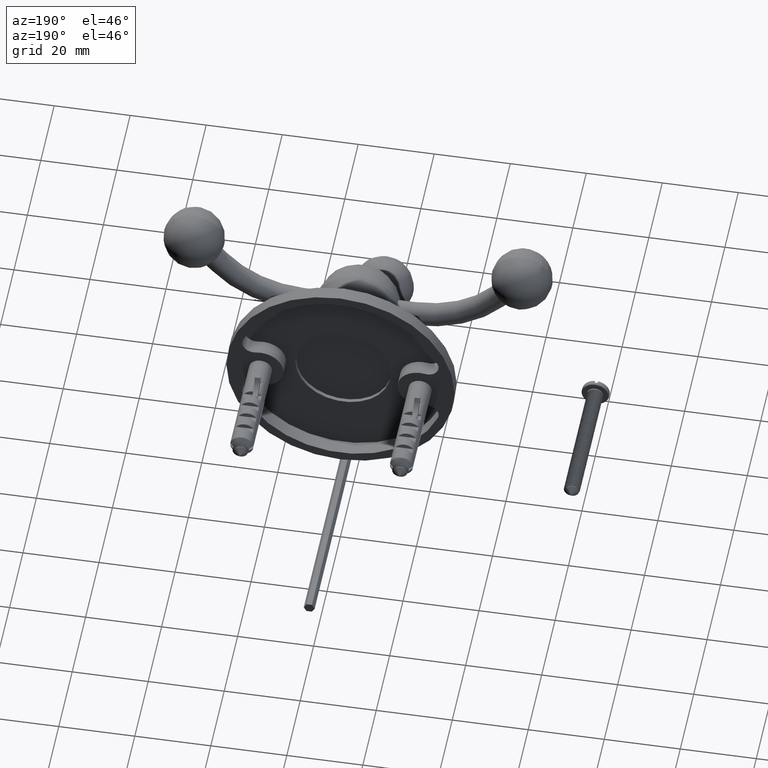
[diagram: clean part render]
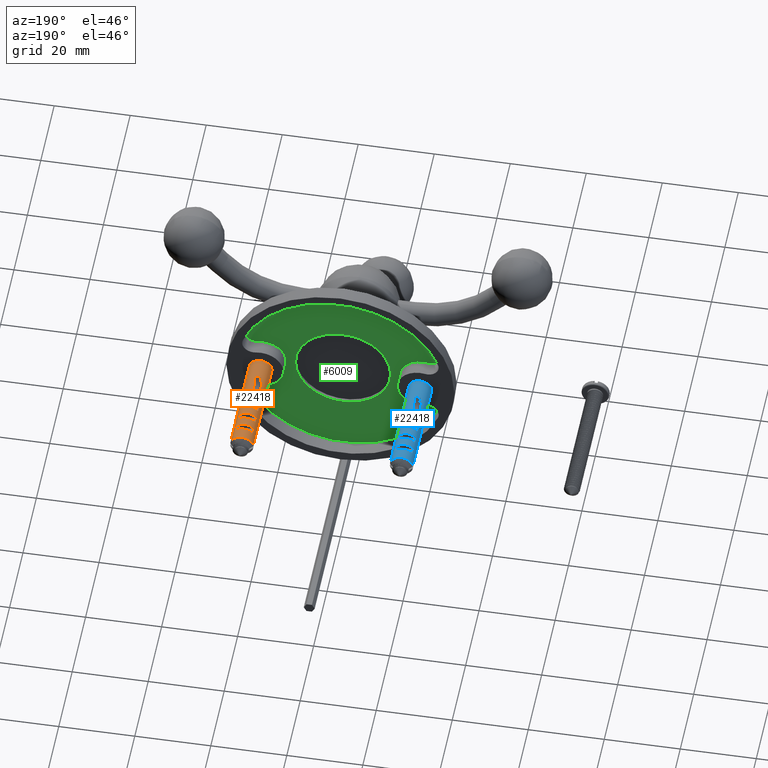
[diagram: same view with three faces highlighted in distinct colors, each labeled with its STEP entity id]
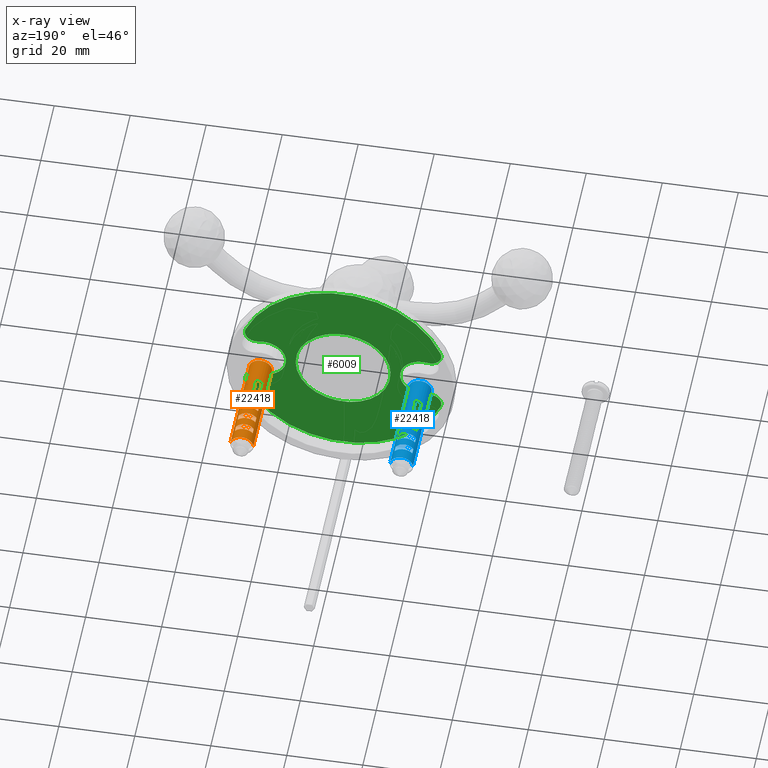
[diagram: x-ray of the same camera — body ghosted, the three highlighted faces saturated]
A machine part, auxiliary view with three faces highlighted in distinct colors.
The next image is the same camera in x-ray (body ghosted, the three faces saturated) — at least one of them is partly hidden behind the body in this view.
Their STEP definitions:

[orange] entity #22418 — the highlighted cylindrical surface (edge-blend (fillet) strip) has radius 3.04 mm, axis along (0, -1, 0).
#19980=CARTESIAN_POINT('',(3.019784760542E0,2.806E1,3.5E-1));
#20034=CARTESIAN_POINT('',(-3.019784760542E0,2.806E1,3.5E-1));
#20036=CARTESIAN_POINT('',(0.E0,2.806E1,0.E0));
#20037=DIRECTION('',(0.E0,-1.E0,0.E0));
#20038=DIRECTION('',(9.933502501782E-1,0.E0,1.151315789474E-1));
#20039=AXIS2_PLACEMENT_3D('',#20036,#20037,#20038);
#20154=DIRECTION('',(0.E0,1.E0,0.E0));
#20155=VECTOR('',#20154,1.118843533613E1);
#20156=CARTESIAN_POINT('',(-3.04E0,0.E0,0.E0));
#20157=LINE('',#20156,#20155);
#20163=DIRECTION('',(0.E0,1.E0,0.E0));
#20164=VECTOR('',#20163,1.118843533613E1);
#20165=CARTESIAN_POINT('',(3.04E0,0.E0,0.E0));
#20166=LINE('',#20165,#20164);
#20345=DIRECTION('',(0.E0,-1.E0,0.E0));
#20346=VECTOR('',#20345,1.687156466387E1);
#20347=CARTESIAN_POINT('',(3.019784760542E0,2.806E1,3.5E-1));
#20348=LINE('',#20347,#20346);
#20349=CARTESIAN_POINT('',(0.E0,1.118843533613E1,0.E0));
#20350=DIRECTION('',(0.E0,-1.E0,0.E0));
#20351=DIRECTION('',(1.E0,0.E0,0.E0));
#20352=AXIS2_PLACEMENT_3D('',#20349,#20350,#20351);
#20354=CARTESIAN_POINT('',(0.E0,0.E0,0.E0));
#20355=DIRECTION('',(0.E0,-1.E0,0.E0));
#20356=DIRECTION('',(1.E0,0.E0,0.E0));
#20357=AXIS2_PLACEMENT_3D('',#20354,#20355,#20356);
#20359=CARTESIAN_POINT('',(0.E0,1.118843533613E1,0.E0));
#20360=DIRECTION('',(0.E0,-1.E0,0.E0));
#20361=DIRECTION('',(-9.933502501782E-1,0.E0,1.151315789474E-1));
#20362=AXIS2_PLACEMENT_3D('',#20359,#20360,#20361);
#20364=DIRECTION('',(0.E0,-1.E0,0.E0));
#20365=VECTOR('',#20364,1.687156466387E1);
#20366=CARTESIAN_POINT('',(-3.019784760542E0,2.806E1,3.5E-1));
#20367=LINE('',#20366,#20365);
#20368=DIRECTION('',(0.E0,-1.E0,0.E0));
#20369=VECTOR('',#20368,1.5E0);
#20370=CARTESIAN_POINT('',(2.332187814049E0,1.7E1,1.95E0));
#20371=LINE('',#20370,#20369);
#20372=CARTESIAN_POINT('',(0.E0,1.7E1,0.E0));
#20373=DIRECTION('',(0.E0,-1.E0,0.E0));
#20374=DIRECTION('',(7.671670440952E-1,0.E0,6.414473684211E-1));
#20375=AXIS2_PLACEMENT_3D('',#20372,#20373,#20374);
#20377=DIRECTION('',(0.E0,-1.E0,0.E0));
#20378=VECTOR('',#20377,1.5E0);
#20379=CARTESIAN_POINT('',(-2.332187814049E0,1.7E1,1.95E0));
#20380=LINE('',#20379,#20378);
#20381=CARTESIAN_POINT('',(2.332187814049E0,1.55E1,1.95E0));
#20382=CARTESIAN_POINT('',(2.137838829545E0,1.545901452646E1,2.182440170940E0));
#20383=CARTESIAN_POINT('',(1.749140860537E0,1.539978347189E1,2.518356173912E0));
#20384=CARTESIAN_POINT('',(9.717449225205E-1,1.532642157547E1,
2.934412163319E0));
#20385=CARTESIAN_POINT('',(0.E0,1.529539160140E1,3.110391891120E0));
#20386=CARTESIAN_POINT('',(-9.717449225205E-1,1.532642157547E1,
2.934412163319E0));
#20387=CARTESIAN_POINT('',(-1.749140860537E0,1.539978347189E1,
2.518356173912E0));
#20388=CARTESIAN_POINT('',(-2.137838829545E0,1.545901452646E1,
2.182440170940E0));
#20389=CARTESIAN_POINT('',(-2.332187814049E0,1.55E1,1.95E0));
#20391=DIRECTION('',(0.E0,-1.E0,0.E0));
#20392=VECTOR('',#20391,1.5E0);
#20393=CARTESIAN_POINT('',(2.332187814049E0,2.1E1,1.95E0));
#20394=LINE('',#20393,#20392);
#20395=CARTESIAN_POINT('',(0.E0,2.1E1,0.E0));
#20396=DIRECTION('',(0.E0,-1.E0,0.E0));
#20397=DIRECTION('',(7.671670440952E-1,0.E0,6.414473684211E-1));
#20398=AXIS2_PLACEMENT_3D('',#20395,#20396,#20397);
#20400=DIRECTION('',(0.E0,-1.E0,0.E0));
#20401=VECTOR('',#20400,1.5E0);
#20402=CARTESIAN_POINT('',(-2.332187814049E0,2.1E1,1.95E0));
#20403=LINE('',#20402,#20401);
#20404=CARTESIAN_POINT('',(2.332187814049E0,1.95E1,1.95E0));
#20405=CARTESIAN_POINT('',(2.137838829545E0,1.945901452646E1,2.182440170940E0));
#20406=CARTESIAN_POINT('',(1.749140860537E0,1.939978347189E1,2.518356173912E0));
#20407=CARTESIAN_POINT('',(9.717449225205E-1,1.932642157547E1,
2.934412163319E0));
#20408=CARTESIAN_POINT('',(0.E0,1.929539160140E1,3.110391891120E0));
#20409=CARTESIAN_POINT('',(-9.717449225205E-1,1.932642157547E1,
2.934412163319E0));
#20410=CARTESIAN_POINT('',(-1.749140860537E0,1.939978347189E1,
2.518356173912E0));
#20411=CARTESIAN_POINT('',(-2.137838829545E0,1.945901452646E1,
2.182440170940E0));
#20412=CARTESIAN_POINT('',(-2.332187814049E0,1.95E1,1.95E0));
#20414=CARTESIAN_POINT('',(0.E0,2.5E1,0.E0));
#20415=DIRECTION('',(0.E0,-1.E0,0.E0));
#20416=DIRECTION('',(7.671670440952E-1,0.E0,6.414473684211E-1));
#20417=AXIS2_PLACEMENT_3D('',#20414,#20415,#20416);
#20419=DIRECTION('',(0.E0,-1.E0,0.E0));
#20420=VECTOR('',#20419,1.5E0);
#20421=CARTESIAN_POINT('',(-2.332187814049E0,2.5E1,1.95E0));
#20422=LINE('',#20421,#20420);
#20423=CARTESIAN_POINT('',(2.332187814049E0,2.35E1,1.95E0));
#20424=CARTESIAN_POINT('',(2.137838829545E0,2.345901452646E1,2.182440170940E0));
#20425=CARTESIAN_POINT('',(1.749140860537E0,2.339978347189E1,2.518356173912E0));
#20426=CARTESIAN_POINT('',(9.717449225205E-1,2.332642157547E1,
2.934412163319E0));
#20427=CARTESIAN_POINT('',(0.E0,2.329539160140E1,3.110391891120E0));
#20428=CARTESIAN_POINT('',(-9.717449225205E-1,2.332642157547E1,
2.934412163319E0));
#20429=CARTESIAN_POINT('',(-1.749140860537E0,2.339978347189E1,
2.518356173912E0));
#20430=CARTESIAN_POINT('',(-2.137838829545E0,2.345901452646E1,
2.182440170940E0));
#20431=CARTESIAN_POINT('',(-2.332187814049E0,2.35E1,1.95E0));
#20433=DIRECTION('',(0.E0,-1.E0,0.E0));
#20434=VECTOR('',#20433,1.5E0);
#20435=CARTESIAN_POINT('',(2.332187814049E0,2.5E1,1.95E0));
#20436=LINE('',#20435,#20434);
#20437=CARTESIAN_POINT('',(-1.258592024341E0,1.309607831380E1,
2.767227200120E0));
#20438=CARTESIAN_POINT('',(-1.242961526865E0,1.309406228677E1,
2.774336287083E0));
#20439=CARTESIAN_POINT('',(-1.212783386474E0,1.308954227398E1,
2.787742308904E0));
#20440=CARTESIAN_POINT('',(-1.170905516957E0,1.308178244920E1,
2.805568455516E0));
#20441=CARTESIAN_POINT('',(-1.132153720761E0,1.307336197082E1,
2.821411494835E0));
#20442=CARTESIAN_POINT('',(-1.096468113992E0,1.306455278275E1,
2.835455057921E0));
#20443=CARTESIAN_POINT('',(-1.063652962309E0,1.305554171573E1,
2.847914610832E0));
#20444=CARTESIAN_POINT('',(-1.033478514405E0,1.304645295579E1,
2.858992346653E0));
#20445=CARTESIAN_POINT('',(-1.005699006694E0,1.303736309992E1,
2.868873524394E0));
#20446=CARTESIAN_POINT('',(-9.800637849466E-1,1.302831021592E1,
2.877724907381E0));
#20447=CARTESIAN_POINT('',(-9.563249653145E-1,1.301930133033E1,
2.885695054358E0));
#20448=CARTESIAN_POINT('',(-9.342225686431E-1,1.301030909736E1,
2.892921748062E0));
#20449=CARTESIAN_POINT('',(-9.135030787650E-1,1.300127769158E1,
2.899527519767E0));
#20450=CARTESIAN_POINT('',(-8.940326356771E-1,1.299217541141E1,
2.905586891630E0));
#20451=CARTESIAN_POINT('',(-8.758143058269E-1,1.298302106541E1,
2.911127195002E0));
#20452=CARTESIAN_POINT('',(-8.588781267614E-1,1.297384638697E1,
2.916166037886E0));
#20453=CARTESIAN_POINT('',(-8.432416660016E-1,1.296467805805E1,
2.920723271987E0));
#20454=CARTESIAN_POINT('',(-8.289164623302E-1,1.295554091681E1,
2.924818742352E0));
#20455=CARTESIAN_POINT('',(-8.158987875627E-1,1.294645274184E1,
2.928474690710E0));
#20456=CARTESIAN_POINT('',(-8.041714048951E-1,1.293742019911E1,
2.931714914824E0));
#20457=CARTESIAN_POINT('',(-7.937239998644E-1,1.292846175676E1,
2.934558974300E0));
#20458=CARTESIAN_POINT('',(-7.845115748405E-1,1.291954323727E1,
2.937034032320E0));
#20459=CARTESIAN_POINT('',(-7.764536988366E-1,1.291065927230E1,
2.939172753830E0));
#20460=CARTESIAN_POINT('',(-7.717266903097E-1,1.290442479250E1,
2.940416733148E0));
#20461=CARTESIAN_POINT('',(-7.695551796420E-1,1.290131583494E1,
2.940984924424E0));
#20463=CARTESIAN_POINT('',(-1.442090070688E0,1.306154855976E1,
2.676186687201E0));
#20464=CARTESIAN_POINT('',(-1.436071653813E0,1.306549271813E1,
2.679429872260E0));
#20465=CARTESIAN_POINT('',(-1.423964945264E0,1.307254012935E1,
2.685899038803E0));
#20466=CARTESIAN_POINT('',(-1.406756420029E0,1.308050705517E1,
2.694953284410E0));
#20467=CARTESIAN_POINT('',(-1.387640408810E0,1.308739268937E1,
2.704850778162E0));
#20468=CARTESIAN_POINT('',(-1.368018635734E0,1.309247902853E1,
2.714826237365E0));
#20469=CARTESIAN_POINT('',(-1.349059348314E0,1.309582348314E1,
2.724294919714E0));
#20470=CARTESIAN_POINT('',(-1.330743460229E0,1.309782465315E1,
2.733286472400E0));
#20471=CARTESIAN_POINT('',(-1.313030154747E0,1.309877235584E1,
2.741838546581E0));
#20472=CARTESIAN_POINT('',(-1.295348851308E0,1.309886700564E1,
2.750236552578E0));
#20473=CARTESIAN_POINT('',(-1.277271908532E0,1.309809004468E1,
2.758679373842E0));
#20474=CARTESIAN_POINT('',(-1.264869600965E0,1.309688854276E1,
2.764372260239E0));
#20475=CARTESIAN_POINT('',(-1.258592024341E0,1.309607831380E1,
2.767227200120E0));
#20477=CARTESIAN_POINT('',(0.E0,1.32E1,0.E0));
#20478=DIRECTION('',(0.E0,-1.E0,0.E0));
#20479=DIRECTION('',(-5.633802816901E-1,0.E0,8.261977113275E-1));
#20480=AXIS2_PLACEMENT_3D('',#20477,#20478,#20479);
#20482=CARTESIAN_POINT('',(-1.670329308849E0,1.065507396773E1,2.54E0));
#20483=CARTESIAN_POINT('',(-1.670329308849E0,1.069914792704E1,2.54E0));
#20484=CARTESIAN_POINT('',(-1.680083917811E0,1.078834782849E1,
2.533627423814E0));
#20485=CARTESIAN_POINT('',(-1.727331515602E0,1.092743345836E1,
2.501975298478E0));
#20486=CARTESIAN_POINT('',(-1.806917116382E0,1.106548221901E1,
2.445598622024E0));
#20487=CARTESIAN_POINT('',(-1.909400115731E0,1.119277374916E1,
2.366992284418E0));
#20488=CARTESIAN_POINT('',(-2.031506341843E0,1.131054517933E1,
2.263825334988E0));
#20489=CARTESIAN_POINT('',(-2.172728838839E0,1.141729318740E1,
2.129775149498E0));
#20490=CARTESIAN_POINT('',(-2.277800792740E0,1.147613468412E1,
2.015046537610E0));
#20491=CARTESIAN_POINT('',(-2.332187814049E0,1.15E1,1.95E0));
#20493=DIRECTION('',(0.E0,-1.E0,0.E0));
#20494=VECTOR('',#20493,3.355073967734E0);
#20495=CARTESIAN_POINT('',(-1.670329308849E0,1.065507396773E1,2.54E0));
#20496=LINE('',#20495,#20494);
#20497=CARTESIAN_POINT('',(0.E0,7.3E0,0.E0));
#20498=DIRECTION('',(0.E0,-1.E0,0.E0));
#20499=DIRECTION('',(0.E0,0.E0,1.E0));
#20500=AXIS2_PLACEMENT_3D('',#20497,#20498,#20499);
#20502=DIRECTION('',(0.E0,-1.E0,0.E0));
#20503=VECTOR('',#20502,2.614226191050E0);
#20504=CARTESIAN_POINT('',(0.E0,9.914226191050E0,3.04E0));
#20505=LINE('',#20504,#20503);
#20506=DIRECTION('',(0.E0,-9.999999999587E-1,-9.086910658662E-6));
#20507=VECTOR('',#20506,9.652854982319E-1);
#20508=CARTESIAN_POINT('',(0.E0,1.126973360665E1,3.040008771463E0));
#20509=LINE('',#20508,#20507);
#20510=CARTESIAN_POINT('',(2.332187814049E0,1.15E1,1.95E0));
#20511=CARTESIAN_POINT('',(2.029714365205E0,1.143621259424E1,2.311756354599E0));
#20512=CARTESIAN_POINT('',(1.326417094438E0,1.134482988016E1,2.830013479591E0));
#20513=CARTESIAN_POINT('',(4.754390153436E-1,1.130779244243E1,
3.040063226817E0));
#20514=CARTESIAN_POINT('',(-4.041062377804E-4,1.130780359576E1,
3.039999973141E0));
#20516=CARTESIAN_POINT('',(-7.661821878185E-1,1.313569697756E1,
2.941863911696E0));
#20517=CARTESIAN_POINT('',(-7.689079293111E-1,1.310986290474E1,
2.941154017170E0));
#20518=CARTESIAN_POINT('',(-7.727932550824E-1,1.305805273467E1,
2.940135259275E0));
#20519=CARTESIAN_POINT('',(-7.739299259912E-1,1.297969113617E1,
2.939834680005E0));
#20520=CARTESIAN_POINT('',(-7.715510132887E-1,1.292742092144E1,
2.940462678153E0));
#20521=CARTESIAN_POINT('',(-7.695551796420E-1,1.290131583494E1,
2.940984924424E0));
#20632=CARTESIAN_POINT('',(-7.661821878185E-1,1.313569697756E1,
2.941863911696E0));
#20648=CARTESIAN_POINT('',(-7.661821878185E-1,1.313569697756E1,
2.941863911696E0));
#20649=CARTESIAN_POINT('',(-7.651784531554E-1,1.314519842409E1,
2.942125325239E0));
#20650=CARTESIAN_POINT('',(-7.612930026952E-1,1.316261705403E1,
2.943137679297E0));
#20651=CARTESIAN_POINT('',(-7.498548161187E-1,1.318486140578E1,
2.946079441390E0));
#20652=CARTESIAN_POINT('',(-7.395108721278E-1,1.319545237037E1,
2.948687188474E0));
#20653=CARTESIAN_POINT('',(-7.336974518056E-1,1.320000000003E1,
2.950133400312E0));
#20679=CARTESIAN_POINT('',(-7.336974518056E-1,1.320000000003E1,
2.950133400312E0));
#20681=CARTESIAN_POINT('',(0.E0,1.32E1,0.E0));
#20682=DIRECTION('',(0.E0,1.E0,0.E0));
#20683=DIRECTION('',(-2.413478586494E-1,0.E0,9.704386694301E-1));
#20684=AXIS2_PLACEMENT_3D('',#20681,#20682,#20683);
#20686=CARTESIAN_POINT('',(2.332187814049E0,1.32E1,1.95E0));
#20711=DIRECTION('',(0.E0,-1.E0,0.E0));
#20712=VECTOR('',#20711,1.7E0);
#20713=CARTESIAN_POINT('',(2.332187814049E0,1.32E1,1.95E0));
#20714=LINE('',#20713,#20712);
#20723=DIRECTION('',(0.E0,1.E0,0.E0));
#20724=VECTOR('',#20723,1.7E0);
#20725=CARTESIAN_POINT('',(-2.332187814049E0,1.15E1,1.95E0));
#20726=LINE('',#20725,#20724);
#20913=CARTESIAN_POINT('',(-1.712676148473E0,1.32E1,2.511641177583E0));
#20914=CARTESIAN_POINT('',(-1.681385439710E0,1.319999949343E1,
2.532977161906E0));
#20915=CARTESIAN_POINT('',(-1.622664828460E0,1.319162550705E1,
2.571322581216E0));
#20916=CARTESIAN_POINT('',(-1.546536944487E0,1.316038141232E1,
2.617624286721E0));
#20917=CARTESIAN_POINT('',(-1.485025685883E0,1.311540815642E1,
2.652834450848E0));
#20918=CARTESIAN_POINT('',(-1.454910988394E0,1.308028085986E1,
2.669273553552E0));
#20919=CARTESIAN_POINT('',(-1.442090070688E0,1.306154855976E1,
2.676186687201E0));
#21032=CARTESIAN_POINT('',(-2.E-1,9.924580784170E0,3.033413918343E0));
#21033=CARTESIAN_POINT('',(-1.778180217144E-1,9.922276000313E0,
3.034876427509E0));
#21034=CARTESIAN_POINT('',(-1.334264648030E-1,9.918440504107E0,
3.037314736086E0));
#21035=CARTESIAN_POINT('',(-6.673133489969E-2,9.914991926274E0,
3.039511672422E0));
#21036=CARTESIAN_POINT('',(-2.224978511885E-2,9.914226191050E0,3.04E0));
#21037=CARTESIAN_POINT('',(0.E0,9.914226191050E0,3.04E0));
#21085=CARTESIAN_POINT('',(0.E0,1.030444810846E1,3.04E0));
#21086=CARTESIAN_POINT('',(0.E0,1.027699138774E1,3.04E0));
#21087=CARTESIAN_POINT('',(-2.649331930218E-3,1.022456476112E1,
3.040001494547E0));
#21088=CARTESIAN_POINT('',(-1.342270300489E-2,1.015308404831E1,
3.039980649575E0));
#21089=CARTESIAN_POINT('',(-3.015215574721E-2,1.008965690998E1,
3.039870836977E0));
#21090=CARTESIAN_POINT('',(-5.254081371795E-2,1.003391634392E1,
3.039581778999E0));
#21091=CARTESIAN_POINT('',(-8.154837268344E-2,9.985621725167E0,
3.038962015206E0));
#21092=CARTESIAN_POINT('',(-1.170933481659E-1,9.948055546177E0,
3.037829740922E0));
#21093=CARTESIAN_POINT('',(-1.588995228585E-1,9.925670439106E0,
3.035941130509E0));
#21094=CARTESIAN_POINT('',(-1.861264322373E-1,9.923139272750E0,
3.034328634774E0));
#21095=CARTESIAN_POINT('',(-2.E-1,9.924580784170E0,3.033413918343E0));
#21132=CARTESIAN_POINT('',(-4.041062377794E-4,1.130780359576E1,
3.039999973141E0));
#21159=CARTESIAN_POINT('',(-4.041062377794E-4,1.130780359576E1,
3.039999973141E0));
#21160=CARTESIAN_POINT('',(-3.144743245058E-4,1.130353783217E1,
3.039999985056E0));
#21161=CARTESIAN_POINT('',(-1.649353848039E-4,1.129503319795E1,
3.040001166750E0));
#21162=CARTESIAN_POINT('',(-3.006207808662E-5,1.128229482021E1,
3.039995906873E0));
#21163=CARTESIAN_POINT('',(0.E0,1.127393914568E1,3.040008771463E0));
#21164=CARTESIAN_POINT('',(0.E0,1.126973360665E1,3.040008771463E0));
#21816=CARTESIAN_POINT('',(3.04E0,0.E0,0.E0));
#21817=CARTESIAN_POINT('',(-3.04E0,0.E0,0.E0));
#21818=VERTEX_POINT('',#21816);
#21819=VERTEX_POINT('',#21817);
#21820=VERTEX_POINT('',#19980);
#21821=VERTEX_POINT('',#20034);
#21822=CARTESIAN_POINT('',(3.019784760542E0,1.118843533613E1,3.5E-1));
#21823=VERTEX_POINT('',#21822);
#21824=CARTESIAN_POINT('',(-3.019784760542E0,1.118843533613E1,3.5E-1));
#21825=VERTEX_POINT('',#21824);
#21826=CARTESIAN_POINT('',(3.04E0,1.118843533613E1,0.E0));
#21827=VERTEX_POINT('',#21826);
#21828=CARTESIAN_POINT('',(-3.04E0,1.118843533613E1,0.E0));
#21829=VERTEX_POINT('',#21828);
#21836=CARTESIAN_POINT('',(2.332187814049E0,1.7E1,1.95E0));
#21837=CARTESIAN_POINT('',(2.332187814049E0,1.55E1,1.95E0));
#21838=VERTEX_POINT('',#21836);
#21839=VERTEX_POINT('',#21837);
#21840=CARTESIAN_POINT('',(-2.332187814049E0,1.7E1,1.95E0));
#21841=CARTESIAN_POINT('',(-2.332187814049E0,1.55E1,1.95E0));
#21842=VERTEX_POINT('',#21840);
#21843=VERTEX_POINT('',#21841);
#21844=CARTESIAN_POINT('',(2.332187814049E0,2.1E1,1.95E0));
#21845=CARTESIAN_POINT('',(2.332187814049E0,1.95E1,1.95E0));
#21846=VERTEX_POINT('',#21844);
#21847=VERTEX_POINT('',#21845);
#21848=CARTESIAN_POINT('',(-2.332187814049E0,2.1E1,1.95E0));
#21849=CARTESIAN_POINT('',(-2.332187814049E0,1.95E1,1.95E0));
#21850=VERTEX_POINT('',#21848);
#21851=VERTEX_POINT('',#21849);
#21852=CARTESIAN_POINT('',(2.332187814049E0,2.5E1,1.95E0));
#21853=CARTESIAN_POINT('',(-2.332187814049E0,2.5E1,1.95E0));
#21854=VERTEX_POINT('',#21852);
#21855=VERTEX_POINT('',#21853);
#21856=VERTEX_POINT('',#20423);
#21857=VERTEX_POINT('',#20431);
#21951=CARTESIAN_POINT('',(0.E0,7.3E0,3.04E0));
#21953=VERTEX_POINT('',#21951);
#21954=CARTESIAN_POINT('',(-1.670329308849E0,7.3E0,2.54E0));
#21955=VERTEX_POINT('',#21954);
#21958=CARTESIAN_POINT('',(-1.670329308849E0,1.065507396773E1,2.54E0));
#21959=VERTEX_POINT('',#21958);
#21964=VERTEX_POINT('',#20491);
#21965=CARTESIAN_POINT('',(2.332187814049E0,1.15E1,1.95E0));
#21966=VERTEX_POINT('',#21965);
#21967=VERTEX_POINT('',#21132);
#21969=VERTEX_POINT('',#21032);
#21970=VERTEX_POINT('',#21037);
#21971=CARTESIAN_POINT('',(0.E0,1.126973360665E1,3.040008771463E0));
#21972=CARTESIAN_POINT('',(0.E0,1.030444810846E1,3.04E0));
#21973=VERTEX_POINT('',#21971);
#21974=VERTEX_POINT('',#21972);
#22012=CARTESIAN_POINT('',(-1.712676056338E0,1.32E1,2.511641042435E0));
#22013=CARTESIAN_POINT('',(-2.332187814049E0,1.32E1,1.95E0));
#22014=VERTEX_POINT('',#22012);
#22015=VERTEX_POINT('',#22013);
#22022=VERTEX_POINT('',#20686);
#22040=VERTEX_POINT('',#20679);
#22042=VERTEX_POINT('',#20632);
#22069=VERTEX_POINT('',#20437);
#22070=VERTEX_POINT('',#20461);
#22072=VERTEX_POINT('',#20463);
#22334=CARTESIAN_POINT('',(0.E0,3.15E1,0.E0));
#22335=DIRECTION('',(0.E0,-1.E0,0.E0));
#22336=DIRECTION('',(-1.E0,0.E0,0.E0));
#22337=AXIS2_PLACEMENT_3D('',#22334,#22335,#22336);
#22338=CYLINDRICAL_SURFACE('',#22337,3.04E0);
#22339=ORIENTED_EDGE('',*,*,#22110,.T.);
#22340=ORIENTED_EDGE('',*,*,#22220,.F.);
#22341=ORIENTED_EDGE('',*,*,#22252,.F.);
#22343=ORIENTED_EDGE('',*,*,#22342,.T.);
#22344=ORIENTED_EDGE('',*,*,#22248,.T.);
#22345=ORIENTED_EDGE('',*,*,#22233,.F.);
#22346=ORIENTED_EDGE('',*,*,#22113,.F.);
#22347=ORIENTED_EDGE('',*,*,#22096,.F.);
#22348=EDGE_LOOP('',(#22339,#22340,#22341,#22343,#22344,#22345,#22346,#22347));
#22349=FACE_OUTER_BOUND('',#22348,.F.);
#22351=ORIENTED_EDGE('',*,*,#22350,.F.);
#22353=ORIENTED_EDGE('',*,*,#22352,.T.);
#22355=ORIENTED_EDGE('',*,*,#22354,.T.);
#22357=ORIENTED_EDGE('',*,*,#22356,.F.);
#22358=EDGE_LOOP('',(#22351,#22353,#22355,#22357));
#22359=FACE_BOUND('',#22358,.F.);
#22361=ORIENTED_EDGE('',*,*,#22360,.F.);
#22363=ORIENTED_EDGE('',*,*,#22362,.T.);
#22365=ORIENTED_EDGE('',*,*,#22364,.T.);
#22367=ORIENTED_EDGE('',*,*,#22366,.F.);
#22368=EDGE_LOOP('',(#22361,#22363,#22365,#22367));
#22369=FACE_BOUND('',#22368,.F.);
#22371=ORIENTED_EDGE('',*,*,#22370,.T.);
#22373=ORIENTED_EDGE('',*,*,#22372,.T.);
#22375=ORIENTED_EDGE('',*,*,#22374,.F.);
#22377=ORIENTED_EDGE('',*,*,#22376,.F.);
#22378=EDGE_LOOP('',(#22371,#22373,#22375,#22377));
#22379=FACE_BOUND('',#22378,.F.);
#22381=ORIENTED_EDGE('',*,*,#22380,.F.);
#22383=ORIENTED_EDGE('',*,*,#22382,.F.);
#22385=ORIENTED_EDGE('',*,*,#22384,.F.);
#22387=ORIENTED_EDGE('',*,*,#22386,.T.);
#22389=ORIENTED_EDGE('',*,*,#22388,.F.);
#22391=ORIENTED_EDGE('',*,*,#22390,.F.);
#22393=ORIENTED_EDGE('',*,*,#22392,.T.);
#22395=ORIENTED_EDGE('',*,*,#22394,.F.);
#22397=ORIENTED_EDGE('',*,*,#22396,.F.);
#22399=ORIENTED_EDGE('',*,*,#22398,.F.);
#22401=ORIENTED_EDGE('',*,*,#22400,.F.);
#22403=ORIENTED_EDGE('',*,*,#22402,.F.);
#22405=ORIENTED_EDGE('',*,*,#22404,.F.);
#22407=ORIENTED_EDGE('',*,*,#22406,.F.);
#22409=ORIENTED_EDGE('',*,*,#22408,.F.);
#22411=ORIENTED_EDGE('',*,*,#22410,.F.);
#22413=ORIENTED_EDGE('',*,*,#22412,.F.);
#22415=ORIENTED_EDGE('',*,*,#22414,.T.);
#22416=EDGE_LOOP('',(#22381,#22383,#22385,#22387,#22389,#22391,#22393,#22395,
#22397,#22399,#22401,#22403,#22405,#22407,#22409,#22411,#22413,#22415));
#22417=FACE_BOUND('',#22416,.F.);
#22418=ADVANCED_FACE('',(#22349,#22359,#22369,#22379,#22417),#22338,.T.);
#20040=CIRCLE('',#20039,3.04E0);
#20353=CIRCLE('',#20352,3.04E0);
#20358=CIRCLE('',#20357,3.04E0);
#20363=CIRCLE('',#20362,3.04E0);
#20376=CIRCLE('',#20375,3.04E0);
#20390=B_SPLINE_CURVE_WITH_KNOTS('',3,(#20381,#20382,#20383,#20384,#20385,
#20386,#20387,#20388,#20389),.UNSPECIFIED.,.F.,.F.,(4,1,1,1,1,1,4),(0.E0,
1.25E-1,2.5E-1,5.E-1,7.5E-1,8.75E-1,1.E0),.UNSPECIFIED.);
#20399=CIRCLE('',#20398,3.04E0);
#20413=B_SPLINE_CURVE_WITH_KNOTS('',3,(#20404,#20405,#20406,#20407,#20408,
#20409,#20410,#20411,#20412),.UNSPECIFIED.,.F.,.F.,(4,1,1,1,1,1,4),(0.E0,
1.25E-1,2.5E-1,5.E-1,7.5E-1,8.75E-1,1.E0),.UNSPECIFIED.);
#20418=CIRCLE('',#20417,3.04E0);
#20432=B_SPLINE_CURVE_WITH_KNOTS('',3,(#20423,#20424,#20425,#20426,#20427,
#20428,#20429,#20430,#20431),.UNSPECIFIED.,.F.,.F.,(4,1,1,1,1,1,4),(0.E0,
1.25E-1,2.5E-1,5.E-1,7.5E-1,8.75E-1,1.E0),.UNSPECIFIED.);
#20462=B_SPLINE_CURVE_WITH_KNOTS('',3,(#20437,#20438,#20439,#20440,#20441,
#20442,#20443,#20444,#20445,#20446,#20447,#20448,#20449,#20450,#20451,#20452,
#20453,#20454,#20455,#20456,#20457,#20458,#20459,#20460,#20461),.UNSPECIFIED.,
.F.,.F.,(4,1,1,1,1,1,1,1,1,1,1,1,1,1,1,1,1,1,1,1,1,1,4),(0.E0,4.545454545455E-2,
9.090909090909E-2,1.363636363636E-1,1.818181818182E-1,2.272727272727E-1,
2.727272727273E-1,3.181818181818E-1,3.636363636364E-1,4.090909090909E-1,
4.545454545455E-1,5.E-1,5.454545454545E-1,5.909090909091E-1,6.363636363636E-1,
6.818181818182E-1,7.272727272727E-1,7.727272727273E-1,8.181818181818E-1,
8.636363636364E-1,9.090909090909E-1,9.545454545455E-1,1.E0),.UNSPECIFIED.);
#20476=B_SPLINE_CURVE_WITH_KNOTS('',3,(#20463,#20464,#20465,#20466,#20467,
#20468,#20469,#20470,#20471,#20472,#20473,#20474,#20475),.UNSPECIFIED.,.F.,.F.,(
4,1,1,1,1,1,1,1,1,1,4),(0.E0,1.E-1,2.E-1,3.E-1,4.E-1,5.E-1,6.E-1,7.E-1,8.E-1,
9.E-1,1.E0),.UNSPECIFIED.);
#20481=CIRCLE('',#20480,3.04E0);
#20492=B_SPLINE_CURVE_WITH_KNOTS('',3,(#20482,#20483,#20484,#20485,#20486,
#20487,#20488,#20489,#20490,#20491),.UNSPECIFIED.,.F.,.F.,(4,1,1,1,1,1,1,4),(
0.E0,1.428571428571E-1,2.857142857143E-1,4.285714285714E-1,5.714285714286E-1,
7.142857142857E-1,8.571428571429E-1,1.E0),.UNSPECIFIED.);
#20501=CIRCLE('',#20500,3.04E0);
#20515=B_SPLINE_CURVE_WITH_KNOTS('',3,(#20510,#20511,#20512,#20513,#20514),
.UNSPECIFIED.,.F.,.F.,(4,1,4),(0.E0,5.E-1,1.E0),.UNSPECIFIED.);
#20522=B_SPLINE_CURVE_WITH_KNOTS('',3,(#20516,#20517,#20518,#20519,#20520,
#20521),.UNSPECIFIED.,.F.,.F.,(4,1,1,4),(0.E0,3.333333333333E-1,
6.666666666667E-1,1.E0),.UNSPECIFIED.);
#20654=B_SPLINE_CURVE_WITH_KNOTS('',3,(#20648,#20649,#20650,#20651,#20652,
#20653),.UNSPECIFIED.,.F.,.F.,(4,1,1,4),(0.E0,3.333333333333E-1,
6.666666666667E-1,1.E0),.UNSPECIFIED.);
#20685=CIRCLE('',#20684,3.04E0);
#20920=B_SPLINE_CURVE_WITH_KNOTS('',3,(#20913,#20914,#20915,#20916,#20917,
#20918,#20919),.UNSPECIFIED.,.F.,.F.,(4,1,1,1,4),(0.E0,2.5E-1,5.E-1,7.5E-1,
1.E0),.UNSPECIFIED.);
#21038=B_SPLINE_CURVE_WITH_KNOTS('',3,(#21032,#21033,#21034,#21035,#21036,
#21037),.UNSPECIFIED.,.F.,.F.,(4,1,1,4),(0.E0,3.333333333333E-1,
6.666666666667E-1,1.E0),.UNSPECIFIED.);
#21096=B_SPLINE_CURVE_WITH_KNOTS('',3,(#21085,#21086,#21087,#21088,#21089,
#21090,#21091,#21092,#21093,#21094,#21095),.UNSPECIFIED.,.F.,.F.,(4,1,1,1,1,1,1,
1,4),(0.E0,1.25E-1,2.5E-1,3.75E-1,5.E-1,6.25E-1,7.5E-1,8.75E-1,1.E0),
.UNSPECIFIED.);
#21165=B_SPLINE_CURVE_WITH_KNOTS('',3,(#21159,#21160,#21161,#21162,#21163,
#21164),.UNSPECIFIED.,.F.,.F.,(4,1,1,4),(0.E0,3.333333333333E-1,
6.666666666667E-1,1.E0),.UNSPECIFIED.);
#22096=EDGE_CURVE('',#21820,#21821,#20040,.T.);
#22110=EDGE_CURVE('',#21820,#21823,#20348,.T.);
#22113=EDGE_CURVE('',#21821,#21825,#20367,.T.);
#22220=EDGE_CURVE('',#21827,#21823,#20353,.T.);
#22233=EDGE_CURVE('',#21825,#21829,#20363,.T.);
#22248=EDGE_CURVE('',#21819,#21829,#20157,.T.);
#22252=EDGE_CURVE('',#21818,#21827,#20166,.T.);
#22342=EDGE_CURVE('',#21818,#21819,#20358,.T.);
#22350=EDGE_CURVE('',#21838,#21839,#20371,.T.);
#22352=EDGE_CURVE('',#21838,#21842,#20376,.T.);
#22354=EDGE_CURVE('',#21842,#21843,#20380,.T.);
#22356=EDGE_CURVE('',#21839,#21843,#20390,.T.);
#22360=EDGE_CURVE('',#21846,#21847,#20394,.T.);
#22362=EDGE_CURVE('',#21846,#21850,#20399,.T.);
#22364=EDGE_CURVE('',#21850,#21851,#20403,.T.);
#22366=EDGE_CURVE('',#21847,#21851,#20413,.T.);
#22370=EDGE_CURVE('',#21854,#21855,#20418,.T.);
#22372=EDGE_CURVE('',#21855,#21857,#20422,.T.);
#22374=EDGE_CURVE('',#21856,#21857,#20432,.T.);
#22376=EDGE_CURVE('',#21854,#21856,#20436,.T.);
#22380=EDGE_CURVE('',#22069,#22070,#20462,.T.);
#22382=EDGE_CURVE('',#22072,#22069,#20476,.T.);
#22384=EDGE_CURVE('',#22014,#22072,#20920,.T.);
#22386=EDGE_CURVE('',#22014,#22015,#20481,.T.);
#22388=EDGE_CURVE('',#21964,#22015,#20726,.T.);
#22390=EDGE_CURVE('',#21959,#21964,#20492,.T.);
#22392=EDGE_CURVE('',#21959,#21955,#20496,.T.);
#22394=EDGE_CURVE('',#21953,#21955,#20501,.T.);
#22396=EDGE_CURVE('',#21970,#21953,#20505,.T.);
#22398=EDGE_CURVE('',#21969,#21970,#21038,.T.);
#22400=EDGE_CURVE('',#21974,#21969,#21096,.T.);
#22402=EDGE_CURVE('',#21973,#21974,#20509,.T.);
#22404=EDGE_CURVE('',#21967,#21973,#21165,.T.);
#22406=EDGE_CURVE('',#21966,#21967,#20515,.T.);
#22408=EDGE_CURVE('',#22022,#21966,#20714,.T.);
#22410=EDGE_CURVE('',#22040,#22022,#20685,.T.);
#22412=EDGE_CURVE('',#22042,#22040,#20654,.T.);
#22414=EDGE_CURVE('',#22042,#22070,#20522,.T.);

[blue] entity #22418 — the highlighted cylindrical surface (edge-blend (fillet) strip) has radius 3.04 mm, axis along (0, -1, 0).
#19980=CARTESIAN_POINT('',(3.019784760542E0,2.806E1,3.5E-1));
#20034=CARTESIAN_POINT('',(-3.019784760542E0,2.806E1,3.5E-1));
#20036=CARTESIAN_POINT('',(0.E0,2.806E1,0.E0));
#20037=DIRECTION('',(0.E0,-1.E0,0.E0));
#20038=DIRECTION('',(9.933502501782E-1,0.E0,1.151315789474E-1));
#20039=AXIS2_PLACEMENT_3D('',#20036,#20037,#20038);
#20154=DIRECTION('',(0.E0,1.E0,0.E0));
#20155=VECTOR('',#20154,1.118843533613E1);
#20156=CARTESIAN_POINT('',(-3.04E0,0.E0,0.E0));
#20157=LINE('',#20156,#20155);
#20163=DIRECTION('',(0.E0,1.E0,0.E0));
#20164=VECTOR('',#20163,1.118843533613E1);
#20165=CARTESIAN_POINT('',(3.04E0,0.E0,0.E0));
#20166=LINE('',#20165,#20164);
#20345=DIRECTION('',(0.E0,-1.E0,0.E0));
#20346=VECTOR('',#20345,1.687156466387E1);
#20347=CARTESIAN_POINT('',(3.019784760542E0,2.806E1,3.5E-1));
#20348=LINE('',#20347,#20346);
#20349=CARTESIAN_POINT('',(0.E0,1.118843533613E1,0.E0));
#20350=DIRECTION('',(0.E0,-1.E0,0.E0));
#20351=DIRECTION('',(1.E0,0.E0,0.E0));
#20352=AXIS2_PLACEMENT_3D('',#20349,#20350,#20351);
#20354=CARTESIAN_POINT('',(0.E0,0.E0,0.E0));
#20355=DIRECTION('',(0.E0,-1.E0,0.E0));
#20356=DIRECTION('',(1.E0,0.E0,0.E0));
#20357=AXIS2_PLACEMENT_3D('',#20354,#20355,#20356);
#20359=CARTESIAN_POINT('',(0.E0,1.118843533613E1,0.E0));
#20360=DIRECTION('',(0.E0,-1.E0,0.E0));
#20361=DIRECTION('',(-9.933502501782E-1,0.E0,1.151315789474E-1));
#20362=AXIS2_PLACEMENT_3D('',#20359,#20360,#20361);
#20364=DIRECTION('',(0.E0,-1.E0,0.E0));
#20365=VECTOR('',#20364,1.687156466387E1);
#20366=CARTESIAN_POINT('',(-3.019784760542E0,2.806E1,3.5E-1));
#20367=LINE('',#20366,#20365);
#20368=DIRECTION('',(0.E0,-1.E0,0.E0));
#20369=VECTOR('',#20368,1.5E0);
#20370=CARTESIAN_POINT('',(2.332187814049E0,1.7E1,1.95E0));
#20371=LINE('',#20370,#20369);
#20372=CARTESIAN_POINT('',(0.E0,1.7E1,0.E0));
#20373=DIRECTION('',(0.E0,-1.E0,0.E0));
#20374=DIRECTION('',(7.671670440952E-1,0.E0,6.414473684211E-1));
#20375=AXIS2_PLACEMENT_3D('',#20372,#20373,#20374);
#20377=DIRECTION('',(0.E0,-1.E0,0.E0));
#20378=VECTOR('',#20377,1.5E0);
#20379=CARTESIAN_POINT('',(-2.332187814049E0,1.7E1,1.95E0));
#20380=LINE('',#20379,#20378);
#20381=CARTESIAN_POINT('',(2.332187814049E0,1.55E1,1.95E0));
#20382=CARTESIAN_POINT('',(2.137838829545E0,1.545901452646E1,2.182440170940E0));
#20383=CARTESIAN_POINT('',(1.749140860537E0,1.539978347189E1,2.518356173912E0));
#20384=CARTESIAN_POINT('',(9.717449225205E-1,1.532642157547E1,
2.934412163319E0));
#20385=CARTESIAN_POINT('',(0.E0,1.529539160140E1,3.110391891120E0));
#20386=CARTESIAN_POINT('',(-9.717449225205E-1,1.532642157547E1,
2.934412163319E0));
#20387=CARTESIAN_POINT('',(-1.749140860537E0,1.539978347189E1,
2.518356173912E0));
#20388=CARTESIAN_POINT('',(-2.137838829545E0,1.545901452646E1,
2.182440170940E0));
#20389=CARTESIAN_POINT('',(-2.332187814049E0,1.55E1,1.95E0));
#20391=DIRECTION('',(0.E0,-1.E0,0.E0));
#20392=VECTOR('',#20391,1.5E0);
#20393=CARTESIAN_POINT('',(2.332187814049E0,2.1E1,1.95E0));
#20394=LINE('',#20393,#20392);
#20395=CARTESIAN_POINT('',(0.E0,2.1E1,0.E0));
#20396=DIRECTION('',(0.E0,-1.E0,0.E0));
#20397=DIRECTION('',(7.671670440952E-1,0.E0,6.414473684211E-1));
#20398=AXIS2_PLACEMENT_3D('',#20395,#20396,#20397);
#20400=DIRECTION('',(0.E0,-1.E0,0.E0));
#20401=VECTOR('',#20400,1.5E0);
#20402=CARTESIAN_POINT('',(-2.332187814049E0,2.1E1,1.95E0));
#20403=LINE('',#20402,#20401);
#20404=CARTESIAN_POINT('',(2.332187814049E0,1.95E1,1.95E0));
#20405=CARTESIAN_POINT('',(2.137838829545E0,1.945901452646E1,2.182440170940E0));
#20406=CARTESIAN_POINT('',(1.749140860537E0,1.939978347189E1,2.518356173912E0));
#20407=CARTESIAN_POINT('',(9.717449225205E-1,1.932642157547E1,
2.934412163319E0));
#20408=CARTESIAN_POINT('',(0.E0,1.929539160140E1,3.110391891120E0));
#20409=CARTESIAN_POINT('',(-9.717449225205E-1,1.932642157547E1,
2.934412163319E0));
#20410=CARTESIAN_POINT('',(-1.749140860537E0,1.939978347189E1,
2.518356173912E0));
#20411=CARTESIAN_POINT('',(-2.137838829545E0,1.945901452646E1,
2.182440170940E0));
#20412=CARTESIAN_POINT('',(-2.332187814049E0,1.95E1,1.95E0));
#20414=CARTESIAN_POINT('',(0.E0,2.5E1,0.E0));
#20415=DIRECTION('',(0.E0,-1.E0,0.E0));
#20416=DIRECTION('',(7.671670440952E-1,0.E0,6.414473684211E-1));
#20417=AXIS2_PLACEMENT_3D('',#20414,#20415,#20416);
#20419=DIRECTION('',(0.E0,-1.E0,0.E0));
#20420=VECTOR('',#20419,1.5E0);
#20421=CARTESIAN_POINT('',(-2.332187814049E0,2.5E1,1.95E0));
#20422=LINE('',#20421,#20420);
#20423=CARTESIAN_POINT('',(2.332187814049E0,2.35E1,1.95E0));
#20424=CARTESIAN_POINT('',(2.137838829545E0,2.345901452646E1,2.182440170940E0));
#20425=CARTESIAN_POINT('',(1.749140860537E0,2.339978347189E1,2.518356173912E0));
#20426=CARTESIAN_POINT('',(9.717449225205E-1,2.332642157547E1,
2.934412163319E0));
#20427=CARTESIAN_POINT('',(0.E0,2.329539160140E1,3.110391891120E0));
#20428=CARTESIAN_POINT('',(-9.717449225205E-1,2.332642157547E1,
2.934412163319E0));
#20429=CARTESIAN_POINT('',(-1.749140860537E0,2.339978347189E1,
2.518356173912E0));
#20430=CARTESIAN_POINT('',(-2.137838829545E0,2.345901452646E1,
2.182440170940E0));
#20431=CARTESIAN_POINT('',(-2.332187814049E0,2.35E1,1.95E0));
#20433=DIRECTION('',(0.E0,-1.E0,0.E0));
#20434=VECTOR('',#20433,1.5E0);
#20435=CARTESIAN_POINT('',(2.332187814049E0,2.5E1,1.95E0));
#20436=LINE('',#20435,#20434);
#20437=CARTESIAN_POINT('',(-1.258592024341E0,1.309607831380E1,
2.767227200120E0));
#20438=CARTESIAN_POINT('',(-1.242961526865E0,1.309406228677E1,
2.774336287083E0));
#20439=CARTESIAN_POINT('',(-1.212783386474E0,1.308954227398E1,
2.787742308904E0));
#20440=CARTESIAN_POINT('',(-1.170905516957E0,1.308178244920E1,
2.805568455516E0));
#20441=CARTESIAN_POINT('',(-1.132153720761E0,1.307336197082E1,
2.821411494835E0));
#20442=CARTESIAN_POINT('',(-1.096468113992E0,1.306455278275E1,
2.835455057921E0));
#20443=CARTESIAN_POINT('',(-1.063652962309E0,1.305554171573E1,
2.847914610832E0));
#20444=CARTESIAN_POINT('',(-1.033478514405E0,1.304645295579E1,
2.858992346653E0));
#20445=CARTESIAN_POINT('',(-1.005699006694E0,1.303736309992E1,
2.868873524394E0));
#20446=CARTESIAN_POINT('',(-9.800637849466E-1,1.302831021592E1,
2.877724907381E0));
#20447=CARTESIAN_POINT('',(-9.563249653145E-1,1.301930133033E1,
2.885695054358E0));
#20448=CARTESIAN_POINT('',(-9.342225686431E-1,1.301030909736E1,
2.892921748062E0));
#20449=CARTESIAN_POINT('',(-9.135030787650E-1,1.300127769158E1,
2.899527519767E0));
#20450=CARTESIAN_POINT('',(-8.940326356771E-1,1.299217541141E1,
2.905586891630E0));
#20451=CARTESIAN_POINT('',(-8.758143058269E-1,1.298302106541E1,
2.911127195002E0));
#20452=CARTESIAN_POINT('',(-8.588781267614E-1,1.297384638697E1,
2.916166037886E0));
#20453=CARTESIAN_POINT('',(-8.432416660016E-1,1.296467805805E1,
2.920723271987E0));
#20454=CARTESIAN_POINT('',(-8.289164623302E-1,1.295554091681E1,
2.924818742352E0));
#20455=CARTESIAN_POINT('',(-8.158987875627E-1,1.294645274184E1,
2.928474690710E0));
#20456=CARTESIAN_POINT('',(-8.041714048951E-1,1.293742019911E1,
2.931714914824E0));
#20457=CARTESIAN_POINT('',(-7.937239998644E-1,1.292846175676E1,
2.934558974300E0));
#20458=CARTESIAN_POINT('',(-7.845115748405E-1,1.291954323727E1,
2.937034032320E0));
#20459=CARTESIAN_POINT('',(-7.764536988366E-1,1.291065927230E1,
2.939172753830E0));
#20460=CARTESIAN_POINT('',(-7.717266903097E-1,1.290442479250E1,
2.940416733148E0));
#20461=CARTESIAN_POINT('',(-7.695551796420E-1,1.290131583494E1,
2.940984924424E0));
#20463=CARTESIAN_POINT('',(-1.442090070688E0,1.306154855976E1,
2.676186687201E0));
#20464=CARTESIAN_POINT('',(-1.436071653813E0,1.306549271813E1,
2.679429872260E0));
#20465=CARTESIAN_POINT('',(-1.423964945264E0,1.307254012935E1,
2.685899038803E0));
#20466=CARTESIAN_POINT('',(-1.406756420029E0,1.308050705517E1,
2.694953284410E0));
#20467=CARTESIAN_POINT('',(-1.387640408810E0,1.308739268937E1,
2.704850778162E0));
#20468=CARTESIAN_POINT('',(-1.368018635734E0,1.309247902853E1,
2.714826237365E0));
#20469=CARTESIAN_POINT('',(-1.349059348314E0,1.309582348314E1,
2.724294919714E0));
#20470=CARTESIAN_POINT('',(-1.330743460229E0,1.309782465315E1,
2.733286472400E0));
#20471=CARTESIAN_POINT('',(-1.313030154747E0,1.309877235584E1,
2.741838546581E0));
#20472=CARTESIAN_POINT('',(-1.295348851308E0,1.309886700564E1,
2.750236552578E0));
#20473=CARTESIAN_POINT('',(-1.277271908532E0,1.309809004468E1,
2.758679373842E0));
#20474=CARTESIAN_POINT('',(-1.264869600965E0,1.309688854276E1,
2.764372260239E0));
#20475=CARTESIAN_POINT('',(-1.258592024341E0,1.309607831380E1,
2.767227200120E0));
#20477=CARTESIAN_POINT('',(0.E0,1.32E1,0.E0));
#20478=DIRECTION('',(0.E0,-1.E0,0.E0));
#20479=DIRECTION('',(-5.633802816901E-1,0.E0,8.261977113275E-1));
#20480=AXIS2_PLACEMENT_3D('',#20477,#20478,#20479);
#20482=CARTESIAN_POINT('',(-1.670329308849E0,1.065507396773E1,2.54E0));
#20483=CARTESIAN_POINT('',(-1.670329308849E0,1.069914792704E1,2.54E0));
#20484=CARTESIAN_POINT('',(-1.680083917811E0,1.078834782849E1,
2.533627423814E0));
#20485=CARTESIAN_POINT('',(-1.727331515602E0,1.092743345836E1,
2.501975298478E0));
#20486=CARTESIAN_POINT('',(-1.806917116382E0,1.106548221901E1,
2.445598622024E0));
#20487=CARTESIAN_POINT('',(-1.909400115731E0,1.119277374916E1,
2.366992284418E0));
#20488=CARTESIAN_POINT('',(-2.031506341843E0,1.131054517933E1,
2.263825334988E0));
#20489=CARTESIAN_POINT('',(-2.172728838839E0,1.141729318740E1,
2.129775149498E0));
#20490=CARTESIAN_POINT('',(-2.277800792740E0,1.147613468412E1,
2.015046537610E0));
#20491=CARTESIAN_POINT('',(-2.332187814049E0,1.15E1,1.95E0));
#20493=DIRECTION('',(0.E0,-1.E0,0.E0));
#20494=VECTOR('',#20493,3.355073967734E0);
#20495=CARTESIAN_POINT('',(-1.670329308849E0,1.065507396773E1,2.54E0));
#20496=LINE('',#20495,#20494);
#20497=CARTESIAN_POINT('',(0.E0,7.3E0,0.E0));
#20498=DIRECTION('',(0.E0,-1.E0,0.E0));
#20499=DIRECTION('',(0.E0,0.E0,1.E0));
#20500=AXIS2_PLACEMENT_3D('',#20497,#20498,#20499);
#20502=DIRECTION('',(0.E0,-1.E0,0.E0));
#20503=VECTOR('',#20502,2.614226191050E0);
#20504=CARTESIAN_POINT('',(0.E0,9.914226191050E0,3.04E0));
#20505=LINE('',#20504,#20503);
#20506=DIRECTION('',(0.E0,-9.999999999587E-1,-9.086910658662E-6));
#20507=VECTOR('',#20506,9.652854982319E-1);
#20508=CARTESIAN_POINT('',(0.E0,1.126973360665E1,3.040008771463E0));
#20509=LINE('',#20508,#20507);
#20510=CARTESIAN_POINT('',(2.332187814049E0,1.15E1,1.95E0));
#20511=CARTESIAN_POINT('',(2.029714365205E0,1.143621259424E1,2.311756354599E0));
#20512=CARTESIAN_POINT('',(1.326417094438E0,1.134482988016E1,2.830013479591E0));
#20513=CARTESIAN_POINT('',(4.754390153436E-1,1.130779244243E1,
3.040063226817E0));
#20514=CARTESIAN_POINT('',(-4.041062377804E-4,1.130780359576E1,
3.039999973141E0));
#20516=CARTESIAN_POINT('',(-7.661821878185E-1,1.313569697756E1,
2.941863911696E0));
#20517=CARTESIAN_POINT('',(-7.689079293111E-1,1.310986290474E1,
2.941154017170E0));
#20518=CARTESIAN_POINT('',(-7.727932550824E-1,1.305805273467E1,
2.940135259275E0));
#20519=CARTESIAN_POINT('',(-7.739299259912E-1,1.297969113617E1,
2.939834680005E0));
#20520=CARTESIAN_POINT('',(-7.715510132887E-1,1.292742092144E1,
2.940462678153E0));
#20521=CARTESIAN_POINT('',(-7.695551796420E-1,1.290131583494E1,
2.940984924424E0));
#20632=CARTESIAN_POINT('',(-7.661821878185E-1,1.313569697756E1,
2.941863911696E0));
#20648=CARTESIAN_POINT('',(-7.661821878185E-1,1.313569697756E1,
2.941863911696E0));
#20649=CARTESIAN_POINT('',(-7.651784531554E-1,1.314519842409E1,
2.942125325239E0));
#20650=CARTESIAN_POINT('',(-7.612930026952E-1,1.316261705403E1,
2.943137679297E0));
#20651=CARTESIAN_POINT('',(-7.498548161187E-1,1.318486140578E1,
2.946079441390E0));
#20652=CARTESIAN_POINT('',(-7.395108721278E-1,1.319545237037E1,
2.948687188474E0));
#20653=CARTESIAN_POINT('',(-7.336974518056E-1,1.320000000003E1,
2.950133400312E0));
#20679=CARTESIAN_POINT('',(-7.336974518056E-1,1.320000000003E1,
2.950133400312E0));
#20681=CARTESIAN_POINT('',(0.E0,1.32E1,0.E0));
#20682=DIRECTION('',(0.E0,1.E0,0.E0));
#20683=DIRECTION('',(-2.413478586494E-1,0.E0,9.704386694301E-1));
#20684=AXIS2_PLACEMENT_3D('',#20681,#20682,#20683);
#20686=CARTESIAN_POINT('',(2.332187814049E0,1.32E1,1.95E0));
#20711=DIRECTION('',(0.E0,-1.E0,0.E0));
#20712=VECTOR('',#20711,1.7E0);
#20713=CARTESIAN_POINT('',(2.332187814049E0,1.32E1,1.95E0));
#20714=LINE('',#20713,#20712);
#20723=DIRECTION('',(0.E0,1.E0,0.E0));
#20724=VECTOR('',#20723,1.7E0);
#20725=CARTESIAN_POINT('',(-2.332187814049E0,1.15E1,1.95E0));
#20726=LINE('',#20725,#20724);
#20913=CARTESIAN_POINT('',(-1.712676148473E0,1.32E1,2.511641177583E0));
#20914=CARTESIAN_POINT('',(-1.681385439710E0,1.319999949343E1,
2.532977161906E0));
#20915=CARTESIAN_POINT('',(-1.622664828460E0,1.319162550705E1,
2.571322581216E0));
#20916=CARTESIAN_POINT('',(-1.546536944487E0,1.316038141232E1,
2.617624286721E0));
#20917=CARTESIAN_POINT('',(-1.485025685883E0,1.311540815642E1,
2.652834450848E0));
#20918=CARTESIAN_POINT('',(-1.454910988394E0,1.308028085986E1,
2.669273553552E0));
#20919=CARTESIAN_POINT('',(-1.442090070688E0,1.306154855976E1,
2.676186687201E0));
#21032=CARTESIAN_POINT('',(-2.E-1,9.924580784170E0,3.033413918343E0));
#21033=CARTESIAN_POINT('',(-1.778180217144E-1,9.922276000313E0,
3.034876427509E0));
#21034=CARTESIAN_POINT('',(-1.334264648030E-1,9.918440504107E0,
3.037314736086E0));
#21035=CARTESIAN_POINT('',(-6.673133489969E-2,9.914991926274E0,
3.039511672422E0));
#21036=CARTESIAN_POINT('',(-2.224978511885E-2,9.914226191050E0,3.04E0));
#21037=CARTESIAN_POINT('',(0.E0,9.914226191050E0,3.04E0));
#21085=CARTESIAN_POINT('',(0.E0,1.030444810846E1,3.04E0));
#21086=CARTESIAN_POINT('',(0.E0,1.027699138774E1,3.04E0));
#21087=CARTESIAN_POINT('',(-2.649331930218E-3,1.022456476112E1,
3.040001494547E0));
#21088=CARTESIAN_POINT('',(-1.342270300489E-2,1.015308404831E1,
3.039980649575E0));
#21089=CARTESIAN_POINT('',(-3.015215574721E-2,1.008965690998E1,
3.039870836977E0));
#21090=CARTESIAN_POINT('',(-5.254081371795E-2,1.003391634392E1,
3.039581778999E0));
#21091=CARTESIAN_POINT('',(-8.154837268344E-2,9.985621725167E0,
3.038962015206E0));
#21092=CARTESIAN_POINT('',(-1.170933481659E-1,9.948055546177E0,
3.037829740922E0));
#21093=CARTESIAN_POINT('',(-1.588995228585E-1,9.925670439106E0,
3.035941130509E0));
#21094=CARTESIAN_POINT('',(-1.861264322373E-1,9.923139272750E0,
3.034328634774E0));
#21095=CARTESIAN_POINT('',(-2.E-1,9.924580784170E0,3.033413918343E0));
#21132=CARTESIAN_POINT('',(-4.041062377794E-4,1.130780359576E1,
3.039999973141E0));
#21159=CARTESIAN_POINT('',(-4.041062377794E-4,1.130780359576E1,
3.039999973141E0));
#21160=CARTESIAN_POINT('',(-3.144743245058E-4,1.130353783217E1,
3.039999985056E0));
#21161=CARTESIAN_POINT('',(-1.649353848039E-4,1.129503319795E1,
3.040001166750E0));
#21162=CARTESIAN_POINT('',(-3.006207808662E-5,1.128229482021E1,
3.039995906873E0));
#21163=CARTESIAN_POINT('',(0.E0,1.127393914568E1,3.040008771463E0));
#21164=CARTESIAN_POINT('',(0.E0,1.126973360665E1,3.040008771463E0));
#21816=CARTESIAN_POINT('',(3.04E0,0.E0,0.E0));
#21817=CARTESIAN_POINT('',(-3.04E0,0.E0,0.E0));
#21818=VERTEX_POINT('',#21816);
#21819=VERTEX_POINT('',#21817);
#21820=VERTEX_POINT('',#19980);
#21821=VERTEX_POINT('',#20034);
#21822=CARTESIAN_POINT('',(3.019784760542E0,1.118843533613E1,3.5E-1));
#21823=VERTEX_POINT('',#21822);
#21824=CARTESIAN_POINT('',(-3.019784760542E0,1.118843533613E1,3.5E-1));
#21825=VERTEX_POINT('',#21824);
#21826=CARTESIAN_POINT('',(3.04E0,1.118843533613E1,0.E0));
#21827=VERTEX_POINT('',#21826);
#21828=CARTESIAN_POINT('',(-3.04E0,1.118843533613E1,0.E0));
#21829=VERTEX_POINT('',#21828);
#21836=CARTESIAN_POINT('',(2.332187814049E0,1.7E1,1.95E0));
#21837=CARTESIAN_POINT('',(2.332187814049E0,1.55E1,1.95E0));
#21838=VERTEX_POINT('',#21836);
#21839=VERTEX_POINT('',#21837);
#21840=CARTESIAN_POINT('',(-2.332187814049E0,1.7E1,1.95E0));
#21841=CARTESIAN_POINT('',(-2.332187814049E0,1.55E1,1.95E0));
#21842=VERTEX_POINT('',#21840);
#21843=VERTEX_POINT('',#21841);
#21844=CARTESIAN_POINT('',(2.332187814049E0,2.1E1,1.95E0));
#21845=CARTESIAN_POINT('',(2.332187814049E0,1.95E1,1.95E0));
#21846=VERTEX_POINT('',#21844);
#21847=VERTEX_POINT('',#21845);
#21848=CARTESIAN_POINT('',(-2.332187814049E0,2.1E1,1.95E0));
#21849=CARTESIAN_POINT('',(-2.332187814049E0,1.95E1,1.95E0));
#21850=VERTEX_POINT('',#21848);
#21851=VERTEX_POINT('',#21849);
#21852=CARTESIAN_POINT('',(2.332187814049E0,2.5E1,1.95E0));
#21853=CARTESIAN_POINT('',(-2.332187814049E0,2.5E1,1.95E0));
#21854=VERTEX_POINT('',#21852);
#21855=VERTEX_POINT('',#21853);
#21856=VERTEX_POINT('',#20423);
#21857=VERTEX_POINT('',#20431);
#21951=CARTESIAN_POINT('',(0.E0,7.3E0,3.04E0));
#21953=VERTEX_POINT('',#21951);
#21954=CARTESIAN_POINT('',(-1.670329308849E0,7.3E0,2.54E0));
#21955=VERTEX_POINT('',#21954);
#21958=CARTESIAN_POINT('',(-1.670329308849E0,1.065507396773E1,2.54E0));
#21959=VERTEX_POINT('',#21958);
#21964=VERTEX_POINT('',#20491);
#21965=CARTESIAN_POINT('',(2.332187814049E0,1.15E1,1.95E0));
#21966=VERTEX_POINT('',#21965);
#21967=VERTEX_POINT('',#21132);
#21969=VERTEX_POINT('',#21032);
#21970=VERTEX_POINT('',#21037);
#21971=CARTESIAN_POINT('',(0.E0,1.126973360665E1,3.040008771463E0));
#21972=CARTESIAN_POINT('',(0.E0,1.030444810846E1,3.04E0));
#21973=VERTEX_POINT('',#21971);
#21974=VERTEX_POINT('',#21972);
#22012=CARTESIAN_POINT('',(-1.712676056338E0,1.32E1,2.511641042435E0));
#22013=CARTESIAN_POINT('',(-2.332187814049E0,1.32E1,1.95E0));
#22014=VERTEX_POINT('',#22012);
#22015=VERTEX_POINT('',#22013);
#22022=VERTEX_POINT('',#20686);
#22040=VERTEX_POINT('',#20679);
#22042=VERTEX_POINT('',#20632);
#22069=VERTEX_POINT('',#20437);
#22070=VERTEX_POINT('',#20461);
#22072=VERTEX_POINT('',#20463);
#22334=CARTESIAN_POINT('',(0.E0,3.15E1,0.E0));
#22335=DIRECTION('',(0.E0,-1.E0,0.E0));
#22336=DIRECTION('',(-1.E0,0.E0,0.E0));
#22337=AXIS2_PLACEMENT_3D('',#22334,#22335,#22336);
#22338=CYLINDRICAL_SURFACE('',#22337,3.04E0);
#22339=ORIENTED_EDGE('',*,*,#22110,.T.);
#22340=ORIENTED_EDGE('',*,*,#22220,.F.);
#22341=ORIENTED_EDGE('',*,*,#22252,.F.);
#22343=ORIENTED_EDGE('',*,*,#22342,.T.);
#22344=ORIENTED_EDGE('',*,*,#22248,.T.);
#22345=ORIENTED_EDGE('',*,*,#22233,.F.);
#22346=ORIENTED_EDGE('',*,*,#22113,.F.);
#22347=ORIENTED_EDGE('',*,*,#22096,.F.);
#22348=EDGE_LOOP('',(#22339,#22340,#22341,#22343,#22344,#22345,#22346,#22347));
#22349=FACE_OUTER_BOUND('',#22348,.F.);
#22351=ORIENTED_EDGE('',*,*,#22350,.F.);
#22353=ORIENTED_EDGE('',*,*,#22352,.T.);
#22355=ORIENTED_EDGE('',*,*,#22354,.T.);
#22357=ORIENTED_EDGE('',*,*,#22356,.F.);
#22358=EDGE_LOOP('',(#22351,#22353,#22355,#22357));
#22359=FACE_BOUND('',#22358,.F.);
#22361=ORIENTED_EDGE('',*,*,#22360,.F.);
#22363=ORIENTED_EDGE('',*,*,#22362,.T.);
#22365=ORIENTED_EDGE('',*,*,#22364,.T.);
#22367=ORIENTED_EDGE('',*,*,#22366,.F.);
#22368=EDGE_LOOP('',(#22361,#22363,#22365,#22367));
#22369=FACE_BOUND('',#22368,.F.);
#22371=ORIENTED_EDGE('',*,*,#22370,.T.);
#22373=ORIENTED_EDGE('',*,*,#22372,.T.);
#22375=ORIENTED_EDGE('',*,*,#22374,.F.);
#22377=ORIENTED_EDGE('',*,*,#22376,.F.);
#22378=EDGE_LOOP('',(#22371,#22373,#22375,#22377));
#22379=FACE_BOUND('',#22378,.F.);
#22381=ORIENTED_EDGE('',*,*,#22380,.F.);
#22383=ORIENTED_EDGE('',*,*,#22382,.F.);
#22385=ORIENTED_EDGE('',*,*,#22384,.F.);
#22387=ORIENTED_EDGE('',*,*,#22386,.T.);
#22389=ORIENTED_EDGE('',*,*,#22388,.F.);
#22391=ORIENTED_EDGE('',*,*,#22390,.F.);
#22393=ORIENTED_EDGE('',*,*,#22392,.T.);
#22395=ORIENTED_EDGE('',*,*,#22394,.F.);
#22397=ORIENTED_EDGE('',*,*,#22396,.F.);
#22399=ORIENTED_EDGE('',*,*,#22398,.F.);
#22401=ORIENTED_EDGE('',*,*,#22400,.F.);
#22403=ORIENTED_EDGE('',*,*,#22402,.F.);
#22405=ORIENTED_EDGE('',*,*,#22404,.F.);
#22407=ORIENTED_EDGE('',*,*,#22406,.F.);
#22409=ORIENTED_EDGE('',*,*,#22408,.F.);
#22411=ORIENTED_EDGE('',*,*,#22410,.F.);
#22413=ORIENTED_EDGE('',*,*,#22412,.F.);
#22415=ORIENTED_EDGE('',*,*,#22414,.T.);
#22416=EDGE_LOOP('',(#22381,#22383,#22385,#22387,#22389,#22391,#22393,#22395,
#22397,#22399,#22401,#22403,#22405,#22407,#22409,#22411,#22413,#22415));
#22417=FACE_BOUND('',#22416,.F.);
#22418=ADVANCED_FACE('',(#22349,#22359,#22369,#22379,#22417),#22338,.T.);
#20040=CIRCLE('',#20039,3.04E0);
#20353=CIRCLE('',#20352,3.04E0);
#20358=CIRCLE('',#20357,3.04E0);
#20363=CIRCLE('',#20362,3.04E0);
#20376=CIRCLE('',#20375,3.04E0);
#20390=B_SPLINE_CURVE_WITH_KNOTS('',3,(#20381,#20382,#20383,#20384,#20385,
#20386,#20387,#20388,#20389),.UNSPECIFIED.,.F.,.F.,(4,1,1,1,1,1,4),(0.E0,
1.25E-1,2.5E-1,5.E-1,7.5E-1,8.75E-1,1.E0),.UNSPECIFIED.);
#20399=CIRCLE('',#20398,3.04E0);
#20413=B_SPLINE_CURVE_WITH_KNOTS('',3,(#20404,#20405,#20406,#20407,#20408,
#20409,#20410,#20411,#20412),.UNSPECIFIED.,.F.,.F.,(4,1,1,1,1,1,4),(0.E0,
1.25E-1,2.5E-1,5.E-1,7.5E-1,8.75E-1,1.E0),.UNSPECIFIED.);
#20418=CIRCLE('',#20417,3.04E0);
#20432=B_SPLINE_CURVE_WITH_KNOTS('',3,(#20423,#20424,#20425,#20426,#20427,
#20428,#20429,#20430,#20431),.UNSPECIFIED.,.F.,.F.,(4,1,1,1,1,1,4),(0.E0,
1.25E-1,2.5E-1,5.E-1,7.5E-1,8.75E-1,1.E0),.UNSPECIFIED.);
#20462=B_SPLINE_CURVE_WITH_KNOTS('',3,(#20437,#20438,#20439,#20440,#20441,
#20442,#20443,#20444,#20445,#20446,#20447,#20448,#20449,#20450,#20451,#20452,
#20453,#20454,#20455,#20456,#20457,#20458,#20459,#20460,#20461),.UNSPECIFIED.,
.F.,.F.,(4,1,1,1,1,1,1,1,1,1,1,1,1,1,1,1,1,1,1,1,1,1,4),(0.E0,4.545454545455E-2,
9.090909090909E-2,1.363636363636E-1,1.818181818182E-1,2.272727272727E-1,
2.727272727273E-1,3.181818181818E-1,3.636363636364E-1,4.090909090909E-1,
4.545454545455E-1,5.E-1,5.454545454545E-1,5.909090909091E-1,6.363636363636E-1,
6.818181818182E-1,7.272727272727E-1,7.727272727273E-1,8.181818181818E-1,
8.636363636364E-1,9.090909090909E-1,9.545454545455E-1,1.E0),.UNSPECIFIED.);
#20476=B_SPLINE_CURVE_WITH_KNOTS('',3,(#20463,#20464,#20465,#20466,#20467,
#20468,#20469,#20470,#20471,#20472,#20473,#20474,#20475),.UNSPECIFIED.,.F.,.F.,(
4,1,1,1,1,1,1,1,1,1,4),(0.E0,1.E-1,2.E-1,3.E-1,4.E-1,5.E-1,6.E-1,7.E-1,8.E-1,
9.E-1,1.E0),.UNSPECIFIED.);
#20481=CIRCLE('',#20480,3.04E0);
#20492=B_SPLINE_CURVE_WITH_KNOTS('',3,(#20482,#20483,#20484,#20485,#20486,
#20487,#20488,#20489,#20490,#20491),.UNSPECIFIED.,.F.,.F.,(4,1,1,1,1,1,1,4),(
0.E0,1.428571428571E-1,2.857142857143E-1,4.285714285714E-1,5.714285714286E-1,
7.142857142857E-1,8.571428571429E-1,1.E0),.UNSPECIFIED.);
#20501=CIRCLE('',#20500,3.04E0);
#20515=B_SPLINE_CURVE_WITH_KNOTS('',3,(#20510,#20511,#20512,#20513,#20514),
.UNSPECIFIED.,.F.,.F.,(4,1,4),(0.E0,5.E-1,1.E0),.UNSPECIFIED.);
#20522=B_SPLINE_CURVE_WITH_KNOTS('',3,(#20516,#20517,#20518,#20519,#20520,
#20521),.UNSPECIFIED.,.F.,.F.,(4,1,1,4),(0.E0,3.333333333333E-1,
6.666666666667E-1,1.E0),.UNSPECIFIED.);
#20654=B_SPLINE_CURVE_WITH_KNOTS('',3,(#20648,#20649,#20650,#20651,#20652,
#20653),.UNSPECIFIED.,.F.,.F.,(4,1,1,4),(0.E0,3.333333333333E-1,
6.666666666667E-1,1.E0),.UNSPECIFIED.);
#20685=CIRCLE('',#20684,3.04E0);
#20920=B_SPLINE_CURVE_WITH_KNOTS('',3,(#20913,#20914,#20915,#20916,#20917,
#20918,#20919),.UNSPECIFIED.,.F.,.F.,(4,1,1,1,4),(0.E0,2.5E-1,5.E-1,7.5E-1,
1.E0),.UNSPECIFIED.);
#21038=B_SPLINE_CURVE_WITH_KNOTS('',3,(#21032,#21033,#21034,#21035,#21036,
#21037),.UNSPECIFIED.,.F.,.F.,(4,1,1,4),(0.E0,3.333333333333E-1,
6.666666666667E-1,1.E0),.UNSPECIFIED.);
#21096=B_SPLINE_CURVE_WITH_KNOTS('',3,(#21085,#21086,#21087,#21088,#21089,
#21090,#21091,#21092,#21093,#21094,#21095),.UNSPECIFIED.,.F.,.F.,(4,1,1,1,1,1,1,
1,4),(0.E0,1.25E-1,2.5E-1,3.75E-1,5.E-1,6.25E-1,7.5E-1,8.75E-1,1.E0),
.UNSPECIFIED.);
#21165=B_SPLINE_CURVE_WITH_KNOTS('',3,(#21159,#21160,#21161,#21162,#21163,
#21164),.UNSPECIFIED.,.F.,.F.,(4,1,1,4),(0.E0,3.333333333333E-1,
6.666666666667E-1,1.E0),.UNSPECIFIED.);
#22096=EDGE_CURVE('',#21820,#21821,#20040,.T.);
#22110=EDGE_CURVE('',#21820,#21823,#20348,.T.);
#22113=EDGE_CURVE('',#21821,#21825,#20367,.T.);
#22220=EDGE_CURVE('',#21827,#21823,#20353,.T.);
#22233=EDGE_CURVE('',#21825,#21829,#20363,.T.);
#22248=EDGE_CURVE('',#21819,#21829,#20157,.T.);
#22252=EDGE_CURVE('',#21818,#21827,#20166,.T.);
#22342=EDGE_CURVE('',#21818,#21819,#20358,.T.);
#22350=EDGE_CURVE('',#21838,#21839,#20371,.T.);
#22352=EDGE_CURVE('',#21838,#21842,#20376,.T.);
#22354=EDGE_CURVE('',#21842,#21843,#20380,.T.);
#22356=EDGE_CURVE('',#21839,#21843,#20390,.T.);
#22360=EDGE_CURVE('',#21846,#21847,#20394,.T.);
#22362=EDGE_CURVE('',#21846,#21850,#20399,.T.);
#22364=EDGE_CURVE('',#21850,#21851,#20403,.T.);
#22366=EDGE_CURVE('',#21847,#21851,#20413,.T.);
#22370=EDGE_CURVE('',#21854,#21855,#20418,.T.);
#22372=EDGE_CURVE('',#21855,#21857,#20422,.T.);
#22374=EDGE_CURVE('',#21856,#21857,#20432,.T.);
#22376=EDGE_CURVE('',#21854,#21856,#20436,.T.);
#22380=EDGE_CURVE('',#22069,#22070,#20462,.T.);
#22382=EDGE_CURVE('',#22072,#22069,#20476,.T.);
#22384=EDGE_CURVE('',#22014,#22072,#20920,.T.);
#22386=EDGE_CURVE('',#22014,#22015,#20481,.T.);
#22388=EDGE_CURVE('',#21964,#22015,#20726,.T.);
#22390=EDGE_CURVE('',#21959,#21964,#20492,.T.);
#22392=EDGE_CURVE('',#21959,#21955,#20496,.T.);
#22394=EDGE_CURVE('',#21953,#21955,#20501,.T.);
#22396=EDGE_CURVE('',#21970,#21953,#20505,.T.);
#22398=EDGE_CURVE('',#21969,#21970,#21038,.T.);
#22400=EDGE_CURVE('',#21974,#21969,#21096,.T.);
#22402=EDGE_CURVE('',#21973,#21974,#20509,.T.);
#22404=EDGE_CURVE('',#21967,#21973,#21165,.T.);
#22406=EDGE_CURVE('',#21966,#21967,#20515,.T.);
#22408=EDGE_CURVE('',#22022,#21966,#20714,.T.);
#22410=EDGE_CURVE('',#22040,#22022,#20685,.T.);
#22412=EDGE_CURVE('',#22042,#22040,#20654,.T.);
#22414=EDGE_CURVE('',#22042,#22070,#20522,.T.);

[green] entity #6009 — the highlighted planar face has unit normal (0, 1, 0).
#5058=CARTESIAN_POINT('',(2.286309523810E1,1.E0,8.805048332280E0));
#5059=DIRECTION('',(0.E0,-1.E0,0.E0));
#5060=DIRECTION('',(-2.070105820106E-1,0.E0,-9.783387035867E-1));
#5061=AXIS2_PLACEMENT_3D('',#5058,#5059,#5060);
#5063=CARTESIAN_POINT('',(2.1E1,1.E0,0.E0));
#5064=DIRECTION('',(0.E0,1.E0,0.E0));
#5065=DIRECTION('',(2.070105820106E-1,0.E0,-9.783387035867E-1));
#5066=AXIS2_PLACEMENT_3D('',#5063,#5064,#5065);
#5068=CARTESIAN_POINT('',(2.286309523810E1,1.E0,-8.805048332280E0));
#5069=DIRECTION('',(0.E0,-1.E0,0.E0));
#5070=DIRECTION('',(9.331875607386E-1,0.E0,-3.593897278482E-1));
#5071=AXIS2_PLACEMENT_3D('',#5068,#5069,#5070);
#5073=CARTESIAN_POINT('',(0.E0,1.E0,0.E0));
#5074=DIRECTION('',(0.E0,-1.E0,0.E0));
#5075=DIRECTION('',(-9.331875607386E-1,0.E0,-3.593897278482E-1));
#5076=AXIS2_PLACEMENT_3D('',#5073,#5074,#5075);
#5078=CARTESIAN_POINT('',(-2.286309523810E1,1.E0,-8.805048332280E0));
#5079=DIRECTION('',(0.E0,-1.E0,0.E0));
#5080=DIRECTION('',(2.070105820106E-1,0.E0,9.783387035867E-1));
#5081=AXIS2_PLACEMENT_3D('',#5078,#5079,#5080);
#5083=CARTESIAN_POINT('',(-2.1E1,1.E0,0.E0));
#5084=DIRECTION('',(0.E0,1.E0,0.E0));
#5085=DIRECTION('',(-2.070105820106E-1,0.E0,9.783387035867E-1));
#5086=AXIS2_PLACEMENT_3D('',#5083,#5084,#5085);
#5088=CARTESIAN_POINT('',(-2.286309523810E1,1.E0,8.805048332280E0));
#5089=DIRECTION('',(0.E0,-1.E0,0.E0));
#5090=DIRECTION('',(-9.331875607386E-1,0.E0,3.593897278482E-1));
#5091=AXIS2_PLACEMENT_3D('',#5088,#5089,#5090);
#5093=CARTESIAN_POINT('',(0.E0,1.E0,0.E0));
#5094=DIRECTION('',(0.E0,-1.E0,0.E0));
#5095=DIRECTION('',(9.331875607386E-1,0.E0,3.593897278482E-1));
#5096=AXIS2_PLACEMENT_3D('',#5093,#5094,#5095);
#5098=CARTESIAN_POINT('',(0.E0,1.E0,0.E0));
#5099=DIRECTION('',(0.E0,-1.E0,0.E0));
#5100=DIRECTION('',(1.E0,0.E0,0.E0));
#5101=AXIS2_PLACEMENT_3D('',#5098,#5099,#5100);
#5103=CARTESIAN_POINT('',(0.E0,1.E0,0.E0));
#5104=DIRECTION('',(0.E0,-1.E0,0.E0));
#5105=DIRECTION('',(-1.E0,0.E0,0.E0));
#5106=AXIS2_PLACEMENT_3D('',#5103,#5104,#5105);
#5236=CARTESIAN_POINT('',(2.224206349206E1,1.E0,5.870032221520E0));
#5237=CARTESIAN_POINT('',(2.566265792031E1,1.E0,9.883217515824E0));
#5238=VERTEX_POINT('',#5236);
#5239=VERTEX_POINT('',#5237);
#5240=CARTESIAN_POINT('',(-2.566265792031E1,1.E0,9.883217515825E0));
#5241=VERTEX_POINT('',#5240);
#5242=CARTESIAN_POINT('',(-2.224206349206E1,1.E0,5.870032221520E0));
#5243=VERTEX_POINT('',#5242);
#5244=CARTESIAN_POINT('',(-2.224206349206E1,1.E0,-5.870032221520E0));
#5245=VERTEX_POINT('',#5244);
#5246=CARTESIAN_POINT('',(-2.566265792031E1,1.E0,-9.883217515825E0));
#5247=VERTEX_POINT('',#5246);
#5248=CARTESIAN_POINT('',(2.566265792031E1,1.E0,-9.883217515825E0));
#5249=VERTEX_POINT('',#5248);
#5250=CARTESIAN_POINT('',(2.224206349206E1,1.E0,-5.870032221520E0));
#5251=VERTEX_POINT('',#5250);
#5268=CARTESIAN_POINT('',(1.25E1,1.E0,0.E0));
#5269=CARTESIAN_POINT('',(-1.25E1,1.E0,0.E0));
#5270=VERTEX_POINT('',#5268);
#5271=VERTEX_POINT('',#5269);
#5988=CARTESIAN_POINT('',(0.E0,1.E0,0.E0));
#5989=DIRECTION('',(0.E0,-1.E0,0.E0));
#5990=DIRECTION('',(1.E0,0.E0,0.E0));
#5991=AXIS2_PLACEMENT_3D('',#5988,#5989,#5990);
#5992=PLANE('',#5991);
#5993=ORIENTED_EDGE('',*,*,#5884,.F.);
#5994=ORIENTED_EDGE('',*,*,#5899,.F.);
#5995=ORIENTED_EDGE('',*,*,#5913,.F.);
#5996=ORIENTED_EDGE('',*,*,#5927,.F.);
#5997=ORIENTED_EDGE('',*,*,#5941,.F.);
#5998=ORIENTED_EDGE('',*,*,#5955,.F.);
#5999=ORIENTED_EDGE('',*,*,#5969,.F.);
#6000=ORIENTED_EDGE('',*,*,#5982,.F.);
#6001=EDGE_LOOP('',(#5993,#5994,#5995,#5996,#5997,#5998,#5999,#6000));
#6002=FACE_OUTER_BOUND('',#6001,.F.);
#6004=ORIENTED_EDGE('',*,*,#6003,.T.);
#6006=ORIENTED_EDGE('',*,*,#6005,.T.);
#6007=EDGE_LOOP('',(#6004,#6006));
#6008=FACE_BOUND('',#6007,.F.);
#6009=ADVANCED_FACE('',(#6002,#6008),#5992,.T.);
#5062=CIRCLE('',#5061,3.E0);
#5067=CIRCLE('',#5066,6.E0);
#5072=CIRCLE('',#5071,3.E0);
#5077=CIRCLE('',#5076,2.75E1);
#5082=CIRCLE('',#5081,3.E0);
#5087=CIRCLE('',#5086,6.E0);
#5092=CIRCLE('',#5091,3.E0);
#5097=CIRCLE('',#5096,2.75E1);
#5102=CIRCLE('',#5101,1.25E1);
#5107=CIRCLE('',#5106,1.25E1);
#5884=EDGE_CURVE('',#5238,#5239,#5062,.T.);
#5899=EDGE_CURVE('',#5251,#5238,#5067,.T.);
#5913=EDGE_CURVE('',#5249,#5251,#5072,.T.);
#5927=EDGE_CURVE('',#5247,#5249,#5077,.T.);
#5941=EDGE_CURVE('',#5245,#5247,#5082,.T.);
#5955=EDGE_CURVE('',#5243,#5245,#5087,.T.);
#5969=EDGE_CURVE('',#5241,#5243,#5092,.T.);
#5982=EDGE_CURVE('',#5239,#5241,#5097,.T.);
#6003=EDGE_CURVE('',#5270,#5271,#5102,.T.);
#6005=EDGE_CURVE('',#5271,#5270,#5107,.T.);